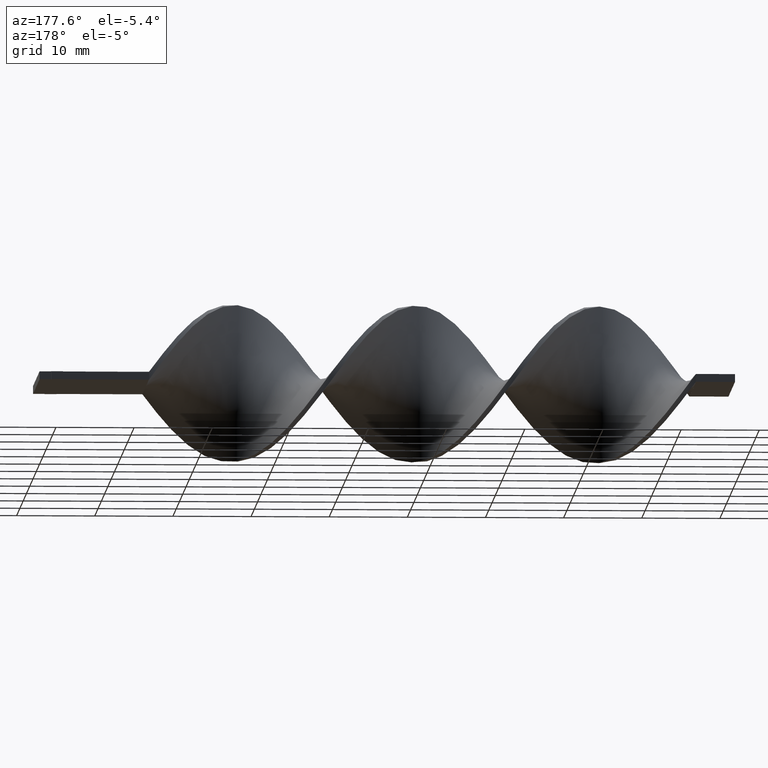
[diagram: clean part render]
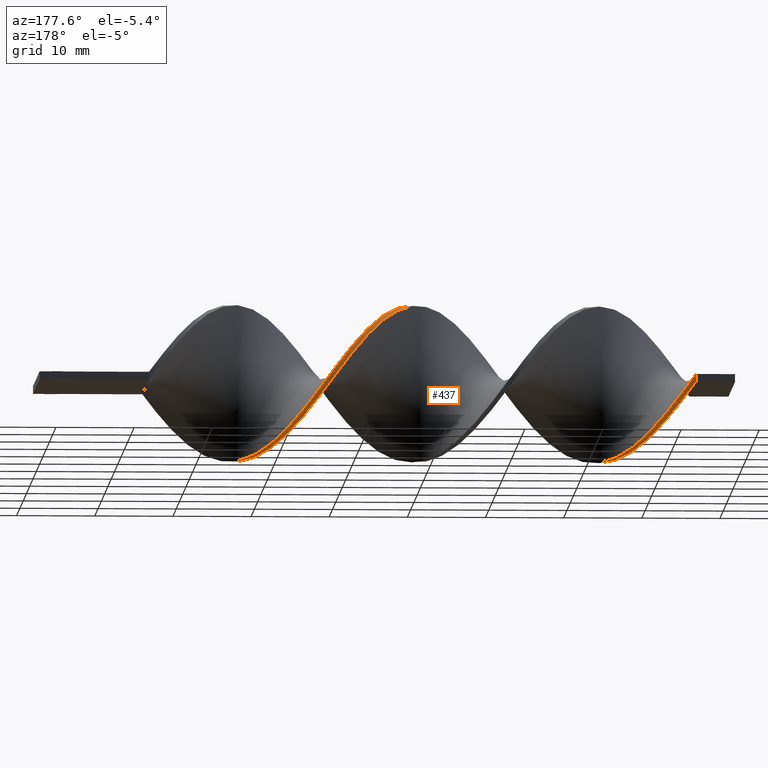
[diagram: same view with one face highlighted and labeled with its STEP entity id]
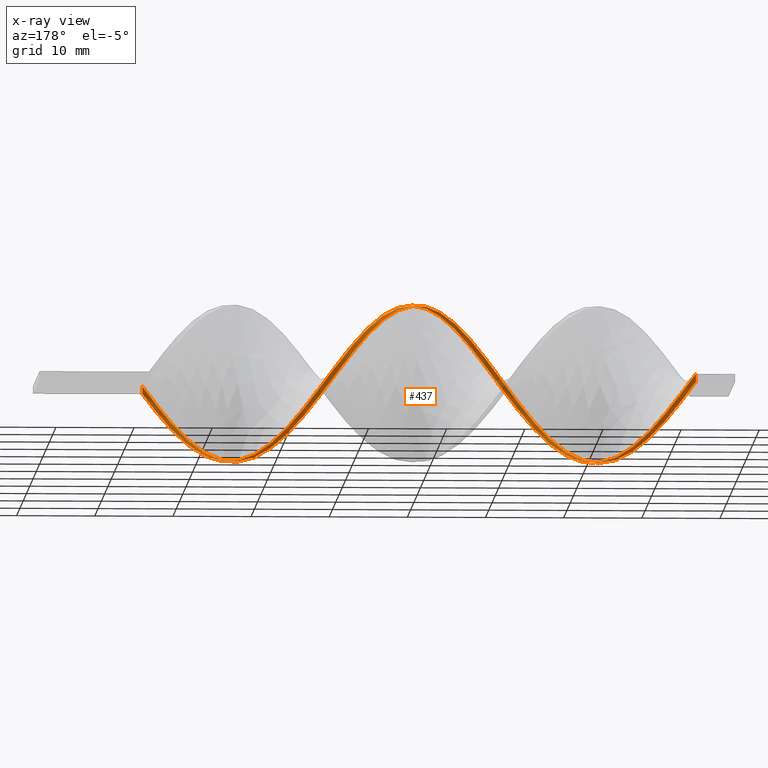
[diagram: x-ray of the same camera — body ghosted, the highlighted face saturated]
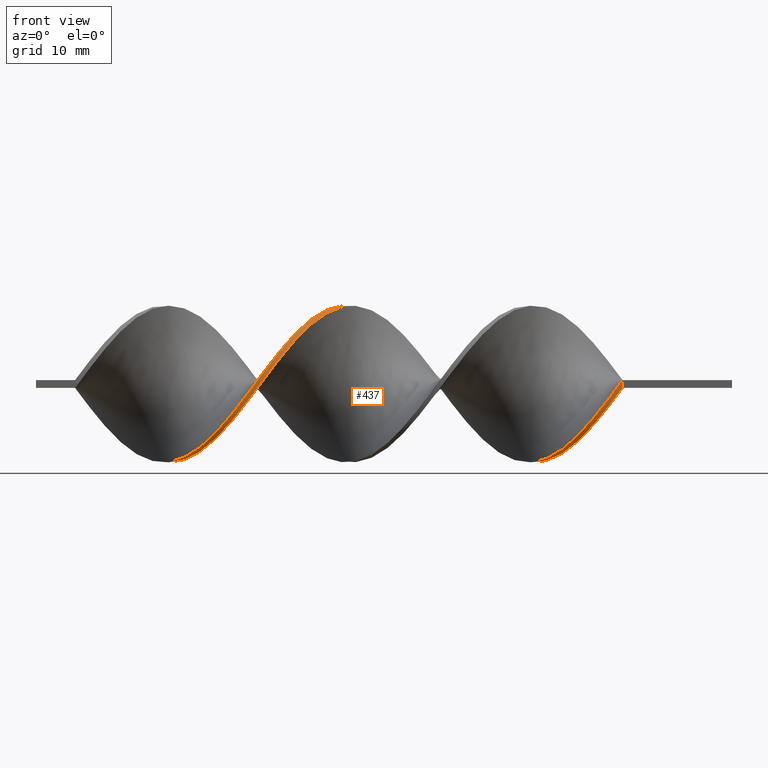
[diagram: same view with one face highlighted and labeled with its STEP entity id]
A machine part, auxiliary view. The second image highlights one B-rep face of the part: STEP entity #437.
The next image is the same camera in x-ray: the body ghosted, the highlighted face saturated — about 2% of this face is hidden behind the body in this view.
A second angle (front view) of the same face is appended — the face is thin or edge-on in the first view.
In plain terms, the highlighted face is a freeform B-spline surface patch.
Its self-contained STEP definition (entity closure, byte-faithful):
#1 = CARTESIAN_POINT ( 'NONE',  ( -49.89743589743589069, -1.701721239602251634, 9.866820400852880368 ) ) ;
#23 = CARTESIAN_POINT ( 'NONE',  ( -59.76923076923076650, -10.06071099161113480, 0.7142198322226109841 ) ) ;
#27 = CARTESIAN_POINT ( 'NONE',  ( -39.12820512820512420, 9.589760342116742109, 2.878627551588600397 ) ) ;
#33 = CARTESIAN_POINT ( 'NONE',  ( -62.46153846153845990, -9.589760342116742109, -2.878627551588603062 ) ) ;
#43 = CARTESIAN_POINT ( 'NONE',  ( -19.38461538461538325, -7.153546152590615215, -7.005481956493501805 ) ) ;
#50 = ORIENTED_EDGE ( 'NONE', *, *, #1482, .F. ) ;
#52 = CARTESIAN_POINT ( 'NONE',  ( -69.64102564102564941, -4.013556991768067128, -9.172859983332880773 ) ) ;
#53 = CARTESIAN_POINT ( 'NONE',  ( -16.69230769230769695, -9.240231675844619019, -4.043035270954601579 ) ) ;
#58 = EDGE_LOOP ( 'NONE', ( #617, #738, #50, #1015 ) ) ;
#60 = CARTESIAN_POINT ( 'NONE',  ( -74.12820512820510999, 1.921697069441246519, -9.901267393559574970 ) ) ;
#61 = CARTESIAN_POINT ( 'NONE',  ( -24.76923076923076650, -1.701721239602260516, -9.866820400852878592 ) ) ;
#68 = CARTESIAN_POINT ( 'NONE',  ( -45.41025641025640880, 5.127343842764457982, 8.685525933616828453 ) ) ;
#69 = CARTESIAN_POINT ( 'NONE',  ( -78.61538461538461320, 7.816668810831406411, -6.256971208322403832 ) ) ;
#77 = CARTESIAN_POINT ( 'NONE',  ( -26.56410256410256210, 0.7090123655042004369, -9.987357081108200418 ) ) ;
#78 = CARTESIAN_POINT ( 'NONE',  ( -19.38461538461538325, -7.816668810831409964, -6.256971208322401168 ) ) ;
#87 = CARTESIAN_POINT ( 'NONE',  ( -20.28205128205128460, -7.056934957752321935, -7.206086637525141114 ) ) ;
#95 = CARTESIAN_POINT ( 'NONE',  ( -27.46153846153846345, 2.899770140771671834, -9.660194033048927764 ) ) ;
#96 = CARTESIAN_POINT ( 'NONE',  ( -39.12820512820512420, 9.829076006404298127, 1.907685734162548385 ) ) ;
#97 = CARTESIAN_POINT ( 'NONE',  ( -16.69230769230769340, -9.597441021197470334, -3.101151636102497555 ) ) ;
#98 = CARTESIAN_POINT ( 'NONE',  ( -73.23076923076924061, 1.701721239602254521, -9.866820400852878592 ) ) ;
#105 = CARTESIAN_POINT ( 'NONE',  ( -44.51282051282051100, 5.269155534364730720, 8.513871032302141373 ) ) ;
#106 = CARTESIAN_POINT ( 'NONE',  ( -69.64102564102564941, -4.013556991768067128, -9.172859983332880773 ) ) ;
#113 = CARTESIAN_POINT ( 'NONE',  ( -76.82051282051281760, 5.269155534364728055, -8.513871032302143149 ) ) ;
#115 = CARTESIAN_POINT ( 'NONE',  ( -84.00000000000000000, 9.999999999999998224, 0.4999999999999988343 ) ) ;
#121 = CARTESIAN_POINT ( 'NONE',  ( -42.71794871794872250, 7.153546152590615215, 7.005481956493500029 ) ) ;
#122 = CARTESIAN_POINT ( 'NONE',  ( -59.76923076923077360, -9.939289008388872304, 1.714219832222610984 ) ) ;
#123 = CARTESIAN_POINT ( 'NONE',  ( -35.53846153846153300, 9.829076006404296351, -1.907685734162555047 ) ) ;
#127 = CARTESIAN_POINT ( 'NONE',  ( -82.20512820512820440, 9.589760342116736780, -2.878627551588606615 ) ) ;
#131 = CARTESIAN_POINT ( 'NONE',  ( -84.00000000000000000, 9.999999999999998224, -0.1666666666666678787 ) ) ;
#146 = CARTESIAN_POINT ( 'NONE',  ( -57.97435897435897090, -9.597441021197468558, 3.101151636102501552 ) ) ;
#149 = CARTESIAN_POINT ( 'NONE',  ( -28.35897435897435770, 4.013556991768060911, -9.172859983332880773 ) ) ;
#158 = CARTESIAN_POINT ( 'NONE',  ( -58.87179487179486870, -9.829076006404299903, 1.907685734162560820 ) ) ;
#166 = CARTESIAN_POINT ( 'NONE',  ( -66.05128205128204399, -7.153546152590615215, -7.005481956493501805 ) ) ;
#175 = CARTESIAN_POINT ( 'NONE',  ( -54.38461538461538680, -6.302926640005405368, 7.874079717413033030 ) ) ;
#176 = CARTESIAN_POINT ( 'NONE',  ( -59.76923076923077360, -10.06071099161113480, 0.7142198322226109841 ) ) ;
#186 = CARTESIAN_POINT ( 'NONE',  ( -70.53846153846153300, -2.899770140771675830, -9.660194033048927764 ) ) ;
#187 = CARTESIAN_POINT ( 'NONE',  ( -75.02564102564102200, 4.013556991768060911, -9.172859983332880773 ) ) ;
#193 = CARTESIAN_POINT ( 'NONE',  ( -31.05128205128205465, 6.302926640005407144, -7.874079717413029478 ) ) ;
#194 = CARTESIAN_POINT ( 'NONE',  ( -49.89743589743589069, -0.7090123655041976614, 9.987357081108202195 ) ) ;
#201 = CARTESIAN_POINT ( 'NONE',  ( -36.43589743589743790, 9.939289008388868751, -1.714219832222609874 ) ) ;
#202 = CARTESIAN_POINT ( 'NONE',  ( -42.71794871794872250, 7.816668810831409964, 6.256971208322399391 ) ) ;
#204 = CARTESIAN_POINT ( 'NONE',  ( -84.00000000000000000, 9.999999999999998224, 0.4999999999999988343 ) ) ;
#210 = CARTESIAN_POINT ( 'NONE',  ( -22.97435897435897090, -4.013556991768067128, -9.172859983332880773 ) ) ;
#211 = CARTESIAN_POINT ( 'NONE',  ( -29.25641025641025905, 4.235384428724049855, -9.153662347191257709 ) ) ;
#219 = CARTESIAN_POINT ( 'NONE',  ( -51.69230769230769340, -3.078540749082649963, 9.527464870375414563 ) ) ;
#222 = CARTESIAN_POINT ( 'NONE',  ( -13.99999999999999645, -10.00000000000000178, 0.5000000000000000000 ) ) ;
#228 = CARTESIAN_POINT ( 'NONE',  ( -34.64102564102564230, 9.597441021197465005, -3.101151636102500220 ) ) ;
#229 = CARTESIAN_POINT ( 'NONE',  ( -57.97435897435897090, -9.240231675844617243, 4.043035270954606020 ) ) ;
#233 = VERTEX_POINT ( 'NONE', #264 ) ;
#236 = CARTESIAN_POINT ( 'NONE',  ( -38.23076923076922640, 9.939289008388868751, 1.714219832222602991 ) ) ;
#237 = CARTESIAN_POINT ( 'NONE',  ( -71.43589743589743080, -1.701721239602260516, -9.866820400852878592 ) ) ;
#244 = CARTESIAN_POINT ( 'NONE',  ( -83.10256410256410220, 9.939289008388868751, -1.714219832222609874 ) ) ;
#247 = CARTESIAN_POINT ( 'NONE',  ( -54.38461538461538680, -7.056934957752315718, 7.206086637525145555 ) ) ;
#252 = CARTESIAN_POINT ( 'NONE',  ( -22.97435897435897090, -3.078540749082652184, -9.527464870375414563 ) ) ;
#253 = CARTESIAN_POINT ( 'NONE',  ( -74.12820512820512420, 1.921697069441246519, -9.901267393559574970 ) ) ;
#255 = CARTESIAN_POINT ( 'NONE',  ( -24.76923076923076650, -0.7090123655042065431, -9.987357081108200418 ) ) ;
#260 = CARTESIAN_POINT ( 'NONE',  ( -73.23076923076924061, 0.7090123655042004369, -9.987357081108200418 ) ) ;
#264 = CARTESIAN_POINT ( 'NONE',  ( -13.99999999999999645, -10.00000000000000178, -0.5000000000000000000 ) ) ;
#272 = CARTESIAN_POINT ( 'NONE',  ( -54.38461538461538680, -7.056934957752314830, 7.206086637525145555 ) ) ;
#273 = VERTEX_POINT ( 'NONE', #1265 ) ;
#281 = CARTESIAN_POINT ( 'NONE',  ( -45.41025641025640880, 4.235384428724056072, 9.153662347191254156 ) ) ;
#289 = CARTESIAN_POINT ( 'NONE',  ( -63.35897435897435770, -9.240231675844619019, -4.043035270954601579 ) ) ;
#293 = CARTESIAN_POINT ( 'NONE',  ( -78.61538461538461320, 7.816668810831406411, -6.256971208322403832 ) ) ;
#297 = CARTESIAN_POINT ( 'NONE',  ( -19.38461538461538325, -7.816668810831409964, -6.256971208322401168 ) ) ;
#298 = CARTESIAN_POINT ( 'NONE',  ( -49.00000000000000711, -0.5036723384328407604, 10.07344676865682764 ) ) ;
#304 = CARTESIAN_POINT ( 'NONE',  ( -57.07692307692307310, -8.622198670510213603, 5.089959733264296737 ) ) ;
#305 = CARTESIAN_POINT ( 'NONE',  ( -68.74358974358973740, -4.235384428724052519, -9.153662347191257709 ) ) ;
#313 = CARTESIAN_POINT ( 'NONE',  ( -20.28205128205128460, -7.056934957752321935, -7.206086637525141114 ) ) ;
#314 = CARTESIAN_POINT ( 'NONE',  ( -41.82051282051281760, 8.576402663910497992, 5.307855779119661221 ) ) ;
#319 = VERTEX_POINT ( 'NONE', #694 ) ;
#322 = CARTESIAN_POINT ( 'NONE',  ( -27.46153846153846345, 1.921697069441246519, -9.901267393559574970 ) ) ;
#323 = CARTESIAN_POINT ( 'NONE',  ( -71.43589743589743080, -0.7090123655042065431, -9.987357081108200418 ) ) ;
#326 = CARTESIAN_POINT ( 'NONE',  ( -75.92307692307691980, 5.127343842764453541, -8.685525933616832006 ) ) ;
#333 = CARTESIAN_POINT ( 'NONE',  ( -51.69230769230769340, -3.078540749082649963, 9.527464870375414563 ) ) ;
#334 = CARTESIAN_POINT ( 'NONE',  ( -17.58974358974358765, -9.086921842553984163, -4.204503707611079832 ) ) ;
#342 = CARTESIAN_POINT ( 'NONE',  ( -21.17948717948717885, -5.269155534364732496, -8.513871032302141373 ) ) ;
#343 = CARTESIAN_POINT ( 'NONE',  ( -38.23076923076922640, 10.06071099161113125, 0.7142198322226029905 ) ) ;
#350 = CARTESIAN_POINT ( 'NONE',  ( -39.12820512820512420, 9.589760342116742109, 2.878627551588600397 ) ) ;
#351 = CARTESIAN_POINT ( 'NONE',  ( -76.82051282051281760, 5.269155534364728055, -8.513871032302143149 ) ) ;
#353 = CARTESIAN_POINT ( 'NONE',  ( -18.48717948717948545, -8.576402663910501545, -5.307855779119662110 ) ) ;
#359 = CARTESIAN_POINT ( 'NONE',  ( -24.76923076923076650, -0.7090123655042065431, -9.987357081108200418 ) ) ;
#367 = CARTESIAN_POINT ( 'NONE',  ( -40.92307692307691980, 8.622198670510211826, 5.089959733264289632 ) ) ;
#368 = CARTESIAN_POINT ( 'NONE',  ( -65.15384615384614619, -8.576402663910501545, -5.307855779119662110 ) ) ;
#374 = CARTESIAN_POINT ( 'NONE',  ( -77.71794871794874382, 6.302926640005407144, -7.874079717413029478 ) ) ;
#375 = CARTESIAN_POINT ( 'NONE',  ( -56.17948717948717530, -8.004165665175817068, 6.136884195573982126 ) ) ;
#376 = CARTESIAN_POINT ( 'NONE',  ( -33.74358974358974450, 9.086921842553980611, -4.204503707611081609 ) ) ;
#381 = CARTESIAN_POINT ( 'NONE',  ( -53.48717948717948900, -5.269155534364728943, 8.513871032302144926 ) ) ;
#398 = CARTESIAN_POINT ( 'NONE',  ( -65.15384615384614619, -8.004165665175818845, -6.136884195573979461 ) ) ;
#402 = CARTESIAN_POINT ( 'NONE',  ( -20.28205128205128460, -6.302926640005413361, -7.874079717413027701 ) ) ;
#406 = CARTESIAN_POINT ( 'NONE',  ( -66.05128205128204399, -7.153546152590615215, -7.005481956493501805 ) ) ;
#409 = CARTESIAN_POINT ( 'NONE',  ( -51.69230769230769340, -4.013556991768065352, 9.172859983332880773 ) ) ;
#414 = CARTESIAN_POINT ( 'NONE',  ( -70.53846153846153300, -1.921697069441250516, -9.901267393559574970 ) ) ;
#417 = CARTESIAN_POINT ( 'NONE',  ( -41.82051282051281760, 8.576402663910497992, 5.307855779119661221 ) ) ;
#427 = CARTESIAN_POINT ( 'NONE',  ( -52.58974358974359120, -4.235384428724044525, 9.153662347191259485 ) ) ;
#428 = CARTESIAN_POINT ( 'NONE',  ( -69.64102564102564941, -3.078540749082652184, -9.527464870375414563 ) ) ;
#435 = CARTESIAN_POINT ( 'NONE',  ( -63.35897435897436480, -9.597441021197470334, -3.101151636102497555 ) ) ;
#436 = CARTESIAN_POINT ( 'NONE',  ( -75.92307692307693401, 5.127343842764453541, -8.685525933616832006 ) ) ;
#437 = ADVANCED_FACE ( 'NONE', ( #1042 ), #1329, .T. ) ;
#444 = CARTESIAN_POINT ( 'NONE',  ( -56.17948717948717530, -8.004165665175817068, 6.136884195573983014 ) ) ;
#445 = CARTESIAN_POINT ( 'NONE',  ( -74.12820512820512420, 2.899770140771672278, -9.660194033048927764 ) ) ;
#446 =( BOUNDED_CURVE ( )  B_SPLINE_CURVE ( 2, ( #222, #1218, #1474, #97, #1594, #353, #297, #313, #453, #565, #210, #1041, #1075, #938, #77, #322, #1323, #1559, #956, #193, #583, #820, #574, #698, #1549, #201, #705, #681, #1428, #1574, #714, #417, #557, #1189, #1172, #68, #922, #1539, #1060, #1198, #803, #1453, #333, #427, #947, #175, #831, #444, #304, #931, #813, #1420, #1305, #1334, #1067, #435, #1207, #548, #794, #1296, #1313, #1437, #52, #186, #691, #1051, #1181, #60, #1567, #1445, #113, #374, #493, #1243, #867, #592, #754, #244, #723 ),
 .UNSPECIFIED., .F., .T. ) 
 B_SPLINE_CURVE_WITH_KNOTS ( ( 3, 2, 2, 2, 2, 2, 2, 2, 2, 2, 2, 2, 2, 2, 2, 2, 2, 2, 2, 2, 2, 2, 2, 2, 2, 2, 2, 2, 2, 2, 2, 2, 2, 2, 2, 2, 2, 2, 2, 3 ),
 ( 0.000000000000000000, 0.01923076923076923184, 0.03846153846153846367, 0.05769230769230768857, 0.07692307692307692735, 0.09615384615384615918, 0.1153846153846153771, 0.1346153846153846090, 0.1538461538461538547, 0.1730769230769230449, 0.1923076923076923184, 0.2115384615384615363, 0.2307692307692307543, 0.2500000000000000000, 0.2692307692307692180, 0.2884615384615384359, 0.3076923076923077094, 0.3269230769230769273, 0.3461538461538460898, 0.3653846153846153633, 0.3846153846153846367, 0.4038461538461539102, 0.4230769230769230727, 0.4423076923076922906, 0.4615384615384615086, 0.4807692307692307820, 0.5000000000000000000, 0.5192307692307692735, 0.5384615384615384359, 0.5576923076923077094, 0.5769230769230768718, 0.5961538461538461453, 0.6153846153846154188, 0.6346153846153845812, 0.6538461538461538547, 0.6730769230769230171, 0.6923076923076921796, 0.7115384615384615641, 0.7307692307692307265, 0.7500000000000000000 ),
 .UNSPECIFIED. ) 
 CURVE ( )  GEOMETRIC_REPRESENTATION_ITEM ( )  RATIONAL_B_SPLINE_CURVE ( ( 1.000000000000000000, 0.9927088740980539727, 1.000000000000000000, 0.9927088740980539727, 1.000000000000000000, 0.9927088740980539727, 1.000000000000000000, 0.9927088740980539727, 1.000000000000000000, 0.9927088740980539727, 1.000000000000000000, 0.9927088740980539727, 1.000000000000000000, 0.9927088740980539727, 1.000000000000000000, 0.9927088740980539727, 1.000000000000000000, 0.9927088740980539727, 1.000000000000000000, 0.9927088740980539727, 1.000000000000000000, 0.9927088740980539727, 1.000000000000000000, 0.9927088740980539727, 1.000000000000000000, 0.9927088740980539727, 1.000000000000000000, 0.9927088740980539727, 1.000000000000000000, 0.9927088740980539727, 1.000000000000000000, 0.9927088740980539727, 1.000000000000000000, 0.9927088740980539727, 1.000000000000000000, 0.9927088740980539727, 1.000000000000000000, 0.9927088740980539727, 1.000000000000000000, 0.9927088740980539727, 1.000000000000000000, 0.9927088740980539727, 1.000000000000000000, 0.9927088740980539727, 1.000000000000000000, 0.9927088740980539727, 1.000000000000000000, 0.9927088740980539727, 1.000000000000000000, 0.9927088740980539727, 1.000000000000000000, 0.9927088740980539727, 1.000000000000000000, 0.9927088740980539727, 1.000000000000000000, 0.9927088740980539727, 1.000000000000000000, 0.9927088740980539727, 1.000000000000000000, 0.9927088740980539727, 1.000000000000000000, 0.9927088740980539727, 1.000000000000000000, 0.9927088740980539727, 1.000000000000000000, 0.9927088740980539727, 1.000000000000000000, 0.9927088740980539727, 1.000000000000000000, 0.9927088740980539727, 1.000000000000000000, 0.9927088740980539727, 1.000000000000000000, 0.9927088740980539727, 1.000000000000000000, 0.9927088740980539727, 1.000000000000000000, 0.9927088740980539727, 1.000000000000000000 ) ) 
 REPRESENTATION_ITEM ( '' )  );
#453 = CARTESIAN_POINT ( 'NONE',  ( -21.17948717948717885, -6.092139400258388626, -7.945806285570984784 ) ) ;
#454 = CARTESIAN_POINT ( 'NONE',  ( -66.94871794871794179, -6.302926640005413361, -7.874079717413027701 ) ) ;
#465 = CARTESIAN_POINT ( 'NONE',  ( -14.89743589743589602, -9.939289008388872304, -1.714219832222605433 ) ) ;
#466 = CARTESIAN_POINT ( 'NONE',  ( -36.43589743589743790, 9.939289008388868751, -1.714219832222609874 ) ) ;
#467 = DIRECTION ( 'NONE',  ( -0.000000000000000000, -0.000000000000000000, -1.000000000000000000 ) ) ;
#468 = CARTESIAN_POINT ( 'NONE',  ( -77.71794871794874382, 7.056934957752318383, -7.206086637525142891 ) ) ;
#476 = CARTESIAN_POINT ( 'NONE',  ( -32.84615384615384670, 8.576402663910496216, -5.307855779119662998 ) ) ;
#480 = CARTESIAN_POINT ( 'NONE',  ( -74.12820512820510999, 2.899770140771671834, -9.660194033048927764 ) ) ;
#487 = LINE ( 'NONE', #1086, #1510 ) ;
#493 = CARTESIAN_POINT ( 'NONE',  ( -78.61538461538461320, 7.153546152590610774, -7.005481956493504470 ) ) ;
#502 = CARTESIAN_POINT ( 'NONE',  ( -48.10256410256410220, 0.7090123655042074313, 9.987357081108202195 ) ) ;
#506 = CARTESIAN_POINT ( 'NONE',  ( -55.28205128205128460, -7.816668810831406411, 6.256971208322405609 ) ) ;
#510 = CARTESIAN_POINT ( 'NONE',  ( -57.07692307692307310, -9.086921842553982387, 4.204503707611086938 ) ) ;
#511 = CARTESIAN_POINT ( 'NONE',  ( -54.38461538461538680, -6.302926640005404479, 7.874079717413032142 ) ) ;
#516 = CARTESIAN_POINT ( 'NONE',  ( -52.58974358974359120, -5.127343842764450876, 8.685525933616833782 ) ) ;
#517 = VERTEX_POINT ( 'NONE', #884 ) ;
#519 = CARTESIAN_POINT ( 'NONE',  ( -84.00000000000000000, 9.999999999999998224, 0.1666666666666654917 ) ) ;
#529 = CARTESIAN_POINT ( 'NONE',  ( -61.56410256410256920, -9.939289008388872304, -1.714219832222605433 ) ) ;
#532 = CARTESIAN_POINT ( 'NONE',  ( -40.02564102564102200, 9.240231675844617243, 4.043035270954598914 ) ) ;
#539 = CARTESIAN_POINT ( 'NONE',  ( -23.87179487179487580, -1.921697069441250294, -9.901267393559574970 ) ) ;
#548 = CARTESIAN_POINT ( 'NONE',  ( -65.15384615384614619, -8.576402663910501545, -5.307855779119662110 ) ) ;
#550 = CARTESIAN_POINT ( 'NONE',  ( -25.66666666666666785, 0.5036723384328397612, -10.07344676865682764 ) ) ;
#557 = CARTESIAN_POINT ( 'NONE',  ( -42.71794871794872250, 7.816668810831409964, 6.256971208322399391 ) ) ;
#565 = CARTESIAN_POINT ( 'NONE',  ( -22.07692307692308020, -5.127343842764455317, -8.685525933616832006 ) ) ;
#566 = CARTESIAN_POINT ( 'NONE',  ( -84.00000000000000000, 9.999999999999998224, 0.4999999999999988343 ) ) ;
#574 = CARTESIAN_POINT ( 'NONE',  ( -33.74358974358974450, 8.622198670510211826, -5.089959733264292296 ) ) ;
#575 = CARTESIAN_POINT ( 'NONE',  ( -45.41025641025640880, 5.127343842764457982, 8.685525933616828453 ) ) ;
#583 = CARTESIAN_POINT ( 'NONE',  ( -31.94871794871794535, 7.153546152590610774, -7.005481956493504470 ) ) ;
#584 = CARTESIAN_POINT ( 'NONE',  ( -49.00000000000000711, 0.5036723384328420927, 10.07344676865682764 ) ) ;
#592 = CARTESIAN_POINT ( 'NONE',  ( -81.30769230769232081, 9.240231675844611914, -4.043035270954604243 ) ) ;
#593 = CARTESIAN_POINT ( 'NONE',  ( -30.15384615384615330, 5.269155534364728055, -8.513871032302143149 ) ) ;
#602 = CARTESIAN_POINT ( 'NONE',  ( -28.35897435897435770, 4.013556991768060911, -9.172859983332880773 ) ) ;
#603 = CARTESIAN_POINT ( 'NONE',  ( -52.58974358974358410, -4.235384428724044525, 9.153662347191259485 ) ) ;
#605 = CARTESIAN_POINT ( 'NONE',  ( -75.02564102564102200, 4.013556991768060911, -9.172859983332880773 ) ) ;
#613 = CARTESIAN_POINT ( 'NONE',  ( -64.25641025641024839, -9.086921842553984163, -4.204503707611079832 ) ) ;
#617 = ORIENTED_EDGE ( 'NONE', *, *, #1017, .F. ) ;
#624 =( BOUNDED_CURVE ( )  B_SPLINE_CURVE ( 2, ( #1084, #465, #966, #1368, #1480, #747, #1472, #848, #342, #731, #252, #1463, #359, #1110, #1216, #95, #602, #1094, #859, #1357, #1591, #476, #1609, #228, #1233, #1116, #976, #236, #350, #1348, #367, #740, #121, #1224, #105, #992, #628, #1615, #502, #999, #1496, #895, #1394, #516, #1507, #272, #1029, #769, #510, #146, #1144, #23, #660, #529, #1022, #1519, #1410, #398, #406, #911, #1211, #919, #1078, #414, #1098, #791, #98, #480, #605, #326, #1456, #468, #293, #979, #1475, #1578, #1535, #1160, #204 ),
 .UNSPECIFIED., .F., .T. ) 
 B_SPLINE_CURVE_WITH_KNOTS ( ( 3, 2, 2, 2, 2, 2, 2, 2, 2, 2, 2, 2, 2, 2, 2, 2, 2, 2, 2, 2, 2, 2, 2, 2, 2, 2, 2, 2, 2, 2, 2, 2, 2, 2, 2, 2, 2, 2, 2, 3 ),
 ( 0.000000000000000000, 0.01923076923076923184, 0.03846153846153846367, 0.05769230769230768857, 0.07692307692307692735, 0.09615384615384615918, 0.1153846153846153771, 0.1346153846153846090, 0.1538461538461538547, 0.1730769230769230449, 0.1923076923076923184, 0.2115384615384615363, 0.2307692307692307543, 0.2500000000000000000, 0.2692307692307692180, 0.2884615384615384359, 0.3076923076923077094, 0.3269230769230769273, 0.3461538461538460898, 0.3653846153846153633, 0.3846153846153846367, 0.4038461538461539102, 0.4230769230769230727, 0.4423076923076922906, 0.4615384615384615086, 0.4807692307692307820, 0.5000000000000000000, 0.5192307692307692735, 0.5384615384615384359, 0.5576923076923077094, 0.5769230769230768718, 0.5961538461538461453, 0.6153846153846154188, 0.6346153846153845812, 0.6538461538461538547, 0.6730769230769230171, 0.6923076923076921796, 0.7115384615384615641, 0.7307692307692307265, 0.7500000000000000000 ),
 .UNSPECIFIED. ) 
 CURVE ( )  GEOMETRIC_REPRESENTATION_ITEM ( )  RATIONAL_B_SPLINE_CURVE ( ( 1.000000000000000000, 0.9927088740980539727, 1.000000000000000000, 0.9927088740980539727, 1.000000000000000000, 0.9927088740980539727, 1.000000000000000000, 0.9927088740980539727, 1.000000000000000000, 0.9927088740980539727, 1.000000000000000000, 0.9927088740980539727, 1.000000000000000000, 0.9927088740980539727, 1.000000000000000000, 0.9927088740980539727, 1.000000000000000000, 0.9927088740980539727, 1.000000000000000000, 0.9927088740980539727, 1.000000000000000000, 0.9927088740980539727, 1.000000000000000000, 0.9927088740980539727, 1.000000000000000000, 0.9927088740980539727, 1.000000000000000000, 0.9927088740980539727, 1.000000000000000000, 0.9927088740980539727, 1.000000000000000000, 0.9927088740980539727, 1.000000000000000000, 0.9927088740980539727, 1.000000000000000000, 0.9927088740980539727, 1.000000000000000000, 0.9927088740980539727, 1.000000000000000000, 0.9927088740980539727, 1.000000000000000000, 0.9927088740980539727, 1.000000000000000000, 0.9927088740980539727, 1.000000000000000000, 0.9927088740980539727, 1.000000000000000000, 0.9927088740980539727, 1.000000000000000000, 0.9927088740980539727, 1.000000000000000000, 0.9927088740980539727, 1.000000000000000000, 0.9927088740980539727, 1.000000000000000000, 0.9927088740980539727, 1.000000000000000000, 0.9927088740980539727, 1.000000000000000000, 0.9927088740980539727, 1.000000000000000000, 0.9927088740980539727, 1.000000000000000000, 0.9927088740980539727, 1.000000000000000000, 0.9927088740980539727, 1.000000000000000000, 0.9927088740980539727, 1.000000000000000000, 0.9927088740980539727, 1.000000000000000000, 0.9927088740980539727, 1.000000000000000000, 0.9927088740980539727, 1.000000000000000000, 0.9927088740980539727, 1.000000000000000000, 0.9927088740980539727, 1.000000000000000000 ) ) 
 REPRESENTATION_ITEM ( '' )  );
#628 = CARTESIAN_POINT ( 'NONE',  ( -46.30769230769230660, 3.078540749082650407, 9.527464870375414563 ) ) ;
#629 = CARTESIAN_POINT ( 'NONE',  ( -79.51282051282051100, 8.004165665175813515, -6.136884195573980350 ) ) ;
#631 = CARTESIAN_POINT ( 'NONE',  ( -46.30769230769230660, 3.078540749082650407, 9.527464870375414563 ) ) ;
#660 = CARTESIAN_POINT ( 'NONE',  ( -60.66666666666666430, -10.00000000000000178, -0.5000000000000000000 ) ) ;
#672 = CARTESIAN_POINT ( 'NONE',  ( -22.07692307692308376, -4.235384428724052519, -9.153662347191257709 ) ) ;
#681 = CARTESIAN_POINT ( 'NONE',  ( -38.23076923076922640, 10.06071099161113125, 0.7142198322226029905 ) ) ;
#682 = CARTESIAN_POINT ( 'NONE',  ( -43.61538461538461320, 6.302926640005414249, 7.874079717413025925 ) ) ;
#691 = CARTESIAN_POINT ( 'NONE',  ( -71.43589743589743080, -1.701721239602260516, -9.866820400852878592 ) ) ;
#692 = CARTESIAN_POINT ( 'NONE',  ( -73.23076923076924061, 1.701721239602254521, -9.866820400852878592 ) ) ;
#694 = CARTESIAN_POINT ( 'NONE',  ( -84.00000000000000000, 9.999999999999998224, -0.5000000000000012212 ) ) ;
#698 = CARTESIAN_POINT ( 'NONE',  ( -34.64102564102564230, 9.240231675844611914, -4.043035270954604243 ) ) ;
#699 = CARTESIAN_POINT ( 'NONE',  ( -13.99999999999999822, -10.00000000000000178, 0.5000000000000000000 ) ) ;
#705 = CARTESIAN_POINT ( 'NONE',  ( -37.33333333333332860, 9.999999999999998224, -0.5000000000000012212 ) ) ;
#706 = CARTESIAN_POINT ( 'NONE',  ( -40.02564102564102200, 9.597441021197468558, 3.101151636102494003 ) ) ;
#714 = CARTESIAN_POINT ( 'NONE',  ( -40.92307692307691980, 9.086921842553980611, 4.204503707611078944 ) ) ;
#715 = CARTESIAN_POINT ( 'NONE',  ( -31.05128205128205821, 6.302926640005407144, -7.874079717413028590 ) ) ;
#723 = CARTESIAN_POINT ( 'NONE',  ( -84.00000000000000000, 9.999999999999998224, -0.5000000000000012212 ) ) ;
#724 = CARTESIAN_POINT ( 'NONE',  ( -67.84615384615385381, -5.269155534364732496, -8.513871032302141373 ) ) ;
#731 = CARTESIAN_POINT ( 'NONE',  ( -22.07692307692308020, -4.235384428724051631, -9.153662347191257709 ) ) ;
#738 = ORIENTED_EDGE ( 'NONE', *, *, #1118, .T. ) ;
#740 = CARTESIAN_POINT ( 'NONE',  ( -41.82051282051281760, 8.004165665175815292, 6.136884195573978573 ) ) ;
#741 = CARTESIAN_POINT ( 'NONE',  ( -57.07692307692307310, -8.622198670510213603, 5.089959733264296737 ) ) ;
#747 = CARTESIAN_POINT ( 'NONE',  ( -18.48717948717948545, -8.004165665175818845, -6.136884195573979461 ) ) ;
#748 = CARTESIAN_POINT ( 'NONE',  ( -63.35897435897435770, -9.597441021197470334, -3.101151636102497555 ) ) ;
#750 = CARTESIAN_POINT ( 'NONE',  ( -31.05128205128205821, 7.056934957752318383, -7.206086637525142891 ) ) ;
#754 = CARTESIAN_POINT ( 'NONE',  ( -82.20512820512820440, 9.589760342116736780, -2.878627551588606615 ) ) ;
#755 = CARTESIAN_POINT ( 'NONE',  ( -75.02564102564102200, 3.078540749082645966, -9.527464870375414563 ) ) ;
#761 = CARTESIAN_POINT ( 'NONE',  ( -72.33333333333332860, -0.5036723384328433140, -10.07344676865682764 ) ) ;
#769 = CARTESIAN_POINT ( 'NONE',  ( -56.17948717948717530, -8.576402663910499768, 5.307855779119664774 ) ) ;
#772 = CARTESIAN_POINT ( 'NONE',  ( -56.17948717948717530, -8.576402663910499768, 5.307855779119664774 ) ) ;
#780 = CARTESIAN_POINT ( 'NONE',  ( -14.89743589743589602, -9.939289008388872304, -1.714219832222605433 ) ) ;
#787 = CARTESIAN_POINT ( 'NONE',  ( -64.25641025641024839, -8.622198670510215379, -5.089959733264290520 ) ) ;
#791 = CARTESIAN_POINT ( 'NONE',  ( -72.33333333333332860, 0.5036723384328397612, -10.07344676865682942 ) ) ;
#794 = CARTESIAN_POINT ( 'NONE',  ( -66.05128205128204399, -7.816668810831409964, -6.256971208322401168 ) ) ;
#796 = CARTESIAN_POINT ( 'NONE',  ( -50.79487179487178850, -2.899770140771671390, 9.660194033048929541 ) ) ;
#803 = CARTESIAN_POINT ( 'NONE',  ( -49.89743589743589069, -0.7090123655041976614, 9.987357081108202195 ) ) ;
#805 = CARTESIAN_POINT ( 'NONE',  ( -79.51282051282051100, 8.576402663910496216, -5.307855779119662998 ) ) ;
#813 = CARTESIAN_POINT ( 'NONE',  ( -58.87179487179486870, -9.589760342116740333, 2.878627551588612388 ) ) ;
#814 = CARTESIAN_POINT ( 'NONE',  ( -44.51282051282051100, 6.092139400258386850, 7.945806285570984784 ) ) ;
#820 = CARTESIAN_POINT ( 'NONE',  ( -32.84615384615384670, 8.004165665175813515, -6.136884195573980350 ) ) ;
#821 = CARTESIAN_POINT ( 'NONE',  ( -72.33333333333332860, 0.5036723384328397612, -10.07344676865682764 ) ) ;
#831 = CARTESIAN_POINT ( 'NONE',  ( -55.28205128205128460, -7.153546152590610774, 7.005481956493506246 ) ) ;
#832 = CARTESIAN_POINT ( 'NONE',  ( -22.07692307692308376, -5.127343842764454429, -8.685525933616832006 ) ) ;
#840 = CARTESIAN_POINT ( 'NONE',  ( -50.79487179487178850, -1.921697069441245631, 9.901267393559576746 ) ) ;
#848 = CARTESIAN_POINT ( 'NONE',  ( -20.28205128205128460, -6.302926640005412473, -7.874079717413027701 ) ) ;
#859 = CARTESIAN_POINT ( 'NONE',  ( -30.15384615384615330, 6.092139400258384185, -7.945806285570986560 ) ) ;
#860 = CARTESIAN_POINT ( 'NONE',  ( -84.00000000000000000, 9.999999999999998224, -0.5000000000000012212 ) ) ;
#867 = CARTESIAN_POINT ( 'NONE',  ( -80.41025641025640880, 8.622198670510211826, -5.089959733264292296 ) ) ;
#868 = CARTESIAN_POINT ( 'NONE',  ( -62.46153846153845990, -9.829076006404301680, -1.907685734162551494 ) ) ;
#869 = CARTESIAN_POINT ( 'NONE',  ( -44.51282051282051100, 5.269155534364730720, 8.513871032302141373 ) ) ;
#878 = CARTESIAN_POINT ( 'NONE',  ( -31.94871794871794535, 7.816668810831406411, -6.256971208322403832 ) ) ;
#884 = CARTESIAN_POINT ( 'NONE',  ( -84.00000000000000000, 9.999999999999998224, 0.4999999999999988343 ) ) ;
#895 = CARTESIAN_POINT ( 'NONE',  ( -50.79487179487178850, -2.899770140771670945, 9.660194033048929541 ) ) ;
#905 = CARTESIAN_POINT ( 'NONE',  ( -60.66666666666666430, -10.00000000000000178, -0.5000000000000000000 ) ) ;
#911 = CARTESIAN_POINT ( 'NONE',  ( -66.94871794871795601, -6.302926640005412473, -7.874079717413027701 ) ) ;
#914 = CARTESIAN_POINT ( 'NONE',  ( -22.97435897435897090, -3.078540749082652184, -9.527464870375414563 ) ) ;
#919 = CARTESIAN_POINT ( 'NONE',  ( -68.74358974358973740, -4.235384428724051631, -9.153662347191257709 ) ) ;
#922 = CARTESIAN_POINT ( 'NONE',  ( -46.30769230769230660, 4.013556991768065352, 9.172859983332880773 ) ) ;
#923 = CARTESIAN_POINT ( 'NONE',  ( -29.25641025641025905, 5.127343842764453541, -8.685525933616832006 ) ) ;
#931 = CARTESIAN_POINT ( 'NONE',  ( -57.97435897435897090, -9.240231675844615467, 4.043035270954605132 ) ) ;
#932 = CARTESIAN_POINT ( 'NONE',  ( -21.17948717948717885, -6.092139400258388626, -7.945806285570984784 ) ) ;
#938 = CARTESIAN_POINT ( 'NONE',  ( -25.66666666666666785, -0.5036723384328433140, -10.07344676865682942 ) ) ;
#940 = CARTESIAN_POINT ( 'NONE',  ( -37.33333333333332860, 9.999999999999998224, -0.5000000000000012212 ) ) ;
#947 = CARTESIAN_POINT ( 'NONE',  ( -53.48717948717948900, -5.269155534364728943, 8.513871032302144926 ) ) ;
#948 = CARTESIAN_POINT ( 'NONE',  ( -25.66666666666666785, -0.5036723384328433140, -10.07344676865682764 ) ) ;
#956 = CARTESIAN_POINT ( 'NONE',  ( -30.15384615384615330, 5.269155534364728055, -8.513871032302143149 ) ) ;
#957 = CARTESIAN_POINT ( 'NONE',  ( -77.71794871794872961, 7.056934957752318383, -7.206086637525142891 ) ) ;
#966 = CARTESIAN_POINT ( 'NONE',  ( -15.79487179487179205, -9.589760342116742109, -2.878627551588603062 ) ) ;
#967 = CARTESIAN_POINT ( 'NONE',  ( -80.41025641025640880, 9.086921842553980611, -4.204503707611081609 ) ) ;
#976 = CARTESIAN_POINT ( 'NONE',  ( -37.33333333333332860, 9.999999999999998224, 0.4999999999999988343 ) ) ;
#977 = CARTESIAN_POINT ( 'NONE',  ( -66.94871794871794179, -7.056934957752321935, -7.206086637525141114 ) ) ;
#979 = CARTESIAN_POINT ( 'NONE',  ( -79.51282051282051100, 8.576402663910496216, -5.307855779119662998 ) ) ;
#984 = CARTESIAN_POINT ( 'NONE',  ( -80.41025641025640880, 8.622198670510211826, -5.089959733264292296 ) ) ;
#991 = B_SPLINE_CURVE_WITH_KNOTS ( 'NONE', 3,
 ( #115, #519, #131, #1228 ),
 .UNSPECIFIED., .F., .F.,
 ( 4, 4 ),
 ( 0.000000000000000000, 1.000000000000000000 ),
 .UNSPECIFIED. ) ;
#992 = CARTESIAN_POINT ( 'NONE',  ( -45.41025641025640880, 4.235384428724055184, 9.153662347191254156 ) ) ;
#999 = CARTESIAN_POINT ( 'NONE',  ( -49.00000000000000000, -0.5036723384328408715, 10.07344676865682942 ) ) ;
#1001 = CARTESIAN_POINT ( 'NONE',  ( -13.99999999999999822, -10.00000000000000178, -0.5000000000000000000 ) ) ;
#1015 = ORIENTED_EDGE ( 'NONE', *, *, #1209, .F. ) ;
#1017 = EDGE_CURVE ( 'NONE', #273, #233, #487, .T. ) ;
#1022 = CARTESIAN_POINT ( 'NONE',  ( -62.46153846153845990, -9.589760342116742109, -2.878627551588603062 ) ) ;
#1025 = CARTESIAN_POINT ( 'NONE',  ( -41.82051282051281760, 8.004165665175815292, 6.136884195573978573 ) ) ;
#1029 = CARTESIAN_POINT ( 'NONE',  ( -55.28205128205128460, -7.816668810831406411, 6.256971208322405609 ) ) ;
#1032 = CARTESIAN_POINT ( 'NONE',  ( -34.64102564102564230, 9.597441021197465005, -3.101151636102500664 ) ) ;
#1041 = CARTESIAN_POINT ( 'NONE',  ( -23.87179487179487580, -2.899770140771675830, -9.660194033048927764 ) ) ;
#1042 = FACE_OUTER_BOUND ( 'NONE', #58, .T. ) ;
#1051 = CARTESIAN_POINT ( 'NONE',  ( -72.33333333333332860, -0.5036723384328433140, -10.07344676865682942 ) ) ;
#1052 = CARTESIAN_POINT ( 'NONE',  ( -30.15384615384615330, 6.092139400258384185, -7.945806285570986560 ) ) ;
#1060 = CARTESIAN_POINT ( 'NONE',  ( -48.10256410256410220, 1.701721239602261404, 9.866820400852876816 ) ) ;
#1061 = CARTESIAN_POINT ( 'NONE',  ( -32.84615384615384670, 8.004165665175813515, -6.136884195573980350 ) ) ;
#1067 = CARTESIAN_POINT ( 'NONE',  ( -62.46153846153845990, -9.829076006404301680, -1.907685734162551494 ) ) ;
#1068 = CARTESIAN_POINT ( 'NONE',  ( -46.30769230769230660, 4.013556991768065352, 9.172859983332880773 ) ) ;
#1075 = CARTESIAN_POINT ( 'NONE',  ( -24.76923076923076650, -1.701721239602260516, -9.866820400852878592 ) ) ;
#1076 = CARTESIAN_POINT ( 'NONE',  ( -35.53846153846153300, 9.589760342116736780, -2.878627551588606615 ) ) ;
#1078 = CARTESIAN_POINT ( 'NONE',  ( -69.64102564102564941, -3.078540749082652184, -9.527464870375414563 ) ) ;
#1084 = CARTESIAN_POINT ( 'NONE',  ( -13.99999999999999645, -10.00000000000000178, -0.5000000000000000000 ) ) ;
#1085 = CARTESIAN_POINT ( 'NONE',  ( -31.94871794871794535, 7.153546152590610774, -7.005481956493504470 ) ) ;
#1086 = CARTESIAN_POINT ( 'NONE',  ( -13.99999999999999645, -10.00000000000000178, 0.5000000000000000000 ) ) ;
#1094 = CARTESIAN_POINT ( 'NONE',  ( -29.25641025641025905, 5.127343842764453541, -8.685525933616832006 ) ) ;
#1095 = CARTESIAN_POINT ( 'NONE',  ( -70.53846153846153300, -1.921697069441250294, -9.901267393559574970 ) ) ;
#1098 = CARTESIAN_POINT ( 'NONE',  ( -71.43589743589743080, -0.7090123655042065431, -9.987357081108200418 ) ) ;
#1104 = CARTESIAN_POINT ( 'NONE',  ( -83.10256410256410220, 9.939289008388868751, -1.714219832222609874 ) ) ;
#1110 = CARTESIAN_POINT ( 'NONE',  ( -25.66666666666666785, 0.5036723384328397612, -10.07344676865682942 ) ) ;
#1111 = CARTESIAN_POINT ( 'NONE',  ( -75.92307692307693401, 4.235384428724049855, -9.153662347191257709 ) ) ;
#1116 = CARTESIAN_POINT ( 'NONE',  ( -36.43589743589743790, 10.06071099161113125, -0.7142198322226099849 ) ) ;
#1118 = EDGE_CURVE ( 'NONE', #273, #319, #446, .T. ) ;
#1120 = CARTESIAN_POINT ( 'NONE',  ( -47.20512820512820440, 1.921697069441246963, 9.901267393559574970 ) ) ;
#1124 = CARTESIAN_POINT ( 'NONE',  ( -66.05128205128204399, -7.816668810831409964, -6.256971208322401168 ) ) ;
#1144 = CARTESIAN_POINT ( 'NONE',  ( -58.87179487179486870, -9.829076006404299903, 1.907685734162560820 ) ) ;
#1147 = CARTESIAN_POINT ( 'NONE',  ( -15.79487179487179205, -9.589760342116742109, -2.878627551588603062 ) ) ;
#1154 = CARTESIAN_POINT ( 'NONE',  ( -61.56410256410256920, -9.939289008388872304, -1.714219832222605433 ) ) ;
#1160 = CARTESIAN_POINT ( 'NONE',  ( -83.10256410256410220, 10.06071099161113125, -0.7142198322226099849 ) ) ;
#1163 = CARTESIAN_POINT ( 'NONE',  ( -18.48717948717948545, -8.004165665175818845, -6.136884195573979461 ) ) ;
#1172 = CARTESIAN_POINT ( 'NONE',  ( -44.51282051282051100, 6.092139400258386850, 7.945806285570984784 ) ) ;
#1173 = CARTESIAN_POINT ( 'NONE',  ( -17.58974358974358765, -8.622198670510215379, -5.089959733264290520 ) ) ;
#1181 = CARTESIAN_POINT ( 'NONE',  ( -73.23076923076924061, 0.7090123655042004369, -9.987357081108200418 ) ) ;
#1182 = CARTESIAN_POINT ( 'NONE',  ( -23.87179487179487580, -2.899770140771675830, -9.660194033048927764 ) ) ;
#1189 = CARTESIAN_POINT ( 'NONE',  ( -43.61538461538461320, 7.056934957752321047, 7.206086637525138450 ) ) ;
#1190 = CARTESIAN_POINT ( 'NONE',  ( -16.69230769230769695, -9.597441021197470334, -3.101151636102497555 ) ) ;
#1198 = CARTESIAN_POINT ( 'NONE',  ( -49.00000000000000000, 0.5036723384328420927, 10.07344676865682942 ) ) ;
#1200 = CARTESIAN_POINT ( 'NONE',  ( -48.10256410256410220, 1.701721239602261404, 9.866820400852876816 ) ) ;
#1207 = CARTESIAN_POINT ( 'NONE',  ( -64.25641025641024839, -9.086921842553984163, -4.204503707611079832 ) ) ;
#1208 = CARTESIAN_POINT ( 'NONE',  ( -28.35897435897435770, 3.078540749082645966, -9.527464870375414563 ) ) ;
#1209 = EDGE_CURVE ( 'NONE', #233, #517, #624, .T. ) ;
#1211 = CARTESIAN_POINT ( 'NONE',  ( -67.84615384615385381, -5.269155534364732496, -8.513871032302141373 ) ) ;
#1216 = CARTESIAN_POINT ( 'NONE',  ( -26.56410256410256210, 1.701721239602254521, -9.866820400852878592 ) ) ;
#1217 = CARTESIAN_POINT ( 'NONE',  ( -15.79487179487179205, -9.829076006404301680, -1.907685734162551494 ) ) ;
#1218 = CARTESIAN_POINT ( 'NONE',  ( -14.89743589743589602, -10.06071099161113480, -0.7142198322226054330 ) ) ;
#1224 = CARTESIAN_POINT ( 'NONE',  ( -43.61538461538461320, 6.302926640005413361, 7.874079717413025925 ) ) ;
#1228 = CARTESIAN_POINT ( 'NONE',  ( -84.00000000000000000, 9.999999999999998224, -0.5000000000000012212 ) ) ;
#1233 = CARTESIAN_POINT ( 'NONE',  ( -35.53846153846153300, 9.829076006404296351, -1.907685734162555047 ) ) ;
#1243 = CARTESIAN_POINT ( 'NONE',  ( -79.51282051282051100, 8.004165665175813515, -6.136884195573980350 ) ) ;
#1244 = CARTESIAN_POINT ( 'NONE',  ( -67.84615384615385381, -6.092139400258388626, -7.945806285570984784 ) ) ;
#1246 = CARTESIAN_POINT ( 'NONE',  ( -21.17948717948717885, -5.269155534364732496, -8.513871032302141373 ) ) ;
#1250 = CARTESIAN_POINT ( 'NONE',  ( -81.30769230769233502, 9.240231675844613690, -4.043035270954605132 ) ) ;
#1255 = CARTESIAN_POINT ( 'NONE',  ( -55.28205128205128460, -7.153546152590610774, 7.005481956493506246 ) ) ;
#1265 = CARTESIAN_POINT ( 'NONE',  ( -13.99999999999999645, -10.00000000000000178, 0.5000000000000000000 ) ) ;
#1270 = CARTESIAN_POINT ( 'NONE',  ( -57.07692307692307310, -9.086921842553982387, 4.204503707611086938 ) ) ;
#1279 = CARTESIAN_POINT ( 'NONE',  ( -52.58974358974358410, -5.127343842764450876, 8.685525933616833782 ) ) ;
#1288 = CARTESIAN_POINT ( 'NONE',  ( -65.15384615384614619, -8.004165665175818845, -6.136884195573979461 ) ) ;
#1296 = CARTESIAN_POINT ( 'NONE',  ( -66.94871794871795601, -7.056934957752321935, -7.206086637525141114 ) ) ;
#1297 = CARTESIAN_POINT ( 'NONE',  ( -57.97435897435897090, -9.597441021197468558, 3.101151636102501996 ) ) ;
#1305 = CARTESIAN_POINT ( 'NONE',  ( -60.66666666666666430, -10.00000000000000178, 0.5000000000000000000 ) ) ;
#1306 = CARTESIAN_POINT ( 'NONE',  ( -82.20512820512820440, 9.829076006404296351, -1.907685734162555047 ) ) ;
#1313 = CARTESIAN_POINT ( 'NONE',  ( -67.84615384615385381, -6.092139400258388626, -7.945806285570984784 ) ) ;
#1314 = CARTESIAN_POINT ( 'NONE',  ( -47.20512820512820440, 2.899770140771672722, 9.660194033048927764 ) ) ;
#1323 = CARTESIAN_POINT ( 'NONE',  ( -28.35897435897435770, 3.078540749082645966, -9.527464870375414563 ) ) ;
#1324 = CARTESIAN_POINT ( 'NONE',  ( -83.10256410256410220, 10.06071099161113125, -0.7142198322226098739 ) ) ;
#1329 =( BOUNDED_SURFACE ( )  B_SPLINE_SURFACE ( 1, 2, ( 
 ( #1001, #780, #1147, #53, #1173, #1163, #43, #402, #1246, #672, #914, #539, #255, #550, #1540, #1498, #149, #923, #1052, #750, #878, #1530, #376, #1032, #123, #1370, #1403, #1421, #27, #532, #1550, #1025, #1413, #682, #869, #281, #631, #1120, #1522, #298, #1, #796, #409, #1279, #1378, #247, #506, #772, #1270, #1297, #158, #176, #905, #1154, #33, #289, #787, #1288, #166, #454, #724, #305, #428, #1095, #323, #821, #692, #445, #187, #436, #1575, #957, #69, #805, #967, #1560, #1306, #1324, #566 ),
 ( #699, #1454, #1217, #1190, #334, #1464, #78, #87, #932, #832, #1568, #1182, #61, #948, #1335, #1584, #1208, #211, #593, #715, #1085, #1061, #1343, #1446, #1076, #466, #940, #343, #96, #706, #1438, #314, #202, #1429, #814, #575, #1068, #1314, #1200, #584, #194, #840, #219, #603, #381, #511, #1255, #375, #741, #229, #1489, #122, #1473, #1592, #868, #748, #613, #368, #1124, #977, #1244, #1358, #106, #1369, #237, #761, #260, #253, #755, #1111, #351, #1375, #1616, #629, #984, #1250, #127, #1104, #860 ) ),
 .UNSPECIFIED., .F., .F., .F. ) 
 B_SPLINE_SURFACE_WITH_KNOTS ( ( 2, 2 ),
 ( 3, 2, 2, 2, 2, 2, 2, 2, 2, 2, 2, 2, 2, 2, 2, 2, 2, 2, 2, 2, 2, 2, 2, 2, 2, 2, 2, 2, 2, 2, 2, 2, 2, 2, 2, 2, 2, 2, 2, 3 ),
 ( 0.000000000000000000, 1.000000000000000000 ),
 ( 0.000000000000000000, 0.01923076923076923184, 0.03846153846153846367, 0.05769230769230769551, 0.07692307692307692735, 0.09615384615384615918, 0.1153846153846153910, 0.1346153846153846090, 0.1538461538461538547, 0.1730769230769230727, 0.1923076923076923184, 0.2115384615384615363, 0.2307692307692307820, 0.2500000000000000000, 0.2692307692307692180, 0.2884615384615384359, 0.3076923076923077094, 0.3269230769230769273, 0.3461538461538461453, 0.3653846153846153633, 0.3846153846153846367, 0.4038461538461538547, 0.4230769230769230727, 0.4423076923076922906, 0.4615384615384615641, 0.4807692307692307820, 0.5000000000000000000, 0.5192307692307692735, 0.5384615384615384359, 0.5576923076923077094, 0.5769230769230768718, 0.5961538461538461453, 0.6153846153846154188, 0.6346153846153845812, 0.6538461538461538547, 0.6730769230769231282, 0.6923076923076922906, 0.7115384615384615641, 0.7307692307692307265, 0.7500000000000000000 ),
 .UNSPECIFIED. ) 
 GEOMETRIC_REPRESENTATION_ITEM ( )  RATIONAL_B_SPLINE_SURFACE ( (
 ( 1.000000000000000000, 0.9927088740980539727, 1.000000000000000000, 0.9927088740980539727, 1.000000000000000000, 0.9927088740980539727, 1.000000000000000000, 0.9927088740980539727, 1.000000000000000000, 0.9927088740980539727, 1.000000000000000000, 0.9927088740980539727, 1.000000000000000000, 0.9927088740980539727, 1.000000000000000000, 0.9927088740980539727, 1.000000000000000000, 0.9927088740980539727, 1.000000000000000000, 0.9927088740980539727, 1.000000000000000000, 0.9927088740980539727, 1.000000000000000000, 0.9927088740980539727, 1.000000000000000000, 0.9927088740980539727, 1.000000000000000000, 0.9927088740980539727, 1.000000000000000000, 0.9927088740980539727, 1.000000000000000000, 0.9927088740980539727, 1.000000000000000000, 0.9927088740980539727, 1.000000000000000000, 0.9927088740980539727, 1.000000000000000000, 0.9927088740980539727, 1.000000000000000000, 0.9927088740980539727, 1.000000000000000000, 0.9927088740980539727, 1.000000000000000000, 0.9927088740980539727, 1.000000000000000000, 0.9927088740980539727, 1.000000000000000000, 0.9927088740980539727, 1.000000000000000000, 0.9927088740980539727, 1.000000000000000000, 0.9927088740980539727, 1.000000000000000000, 0.9927088740980539727, 1.000000000000000000, 0.9927088740980539727, 1.000000000000000000, 0.9927088740980539727, 1.000000000000000000, 0.9927088740980539727, 1.000000000000000000, 0.9927088740980539727, 1.000000000000000000, 0.9927088740980539727, 1.000000000000000000, 0.9927088740980539727, 1.000000000000000000, 0.9927088740980539727, 1.000000000000000000, 0.9927088740980539727, 1.000000000000000000, 0.9927088740980539727, 1.000000000000000000, 0.9927088740980539727, 1.000000000000000000, 0.9927088740980539727, 1.000000000000000000, 0.9927088740980539727, 1.000000000000000000),
 ( 1.000000000000000000, 0.9927088740980539727, 1.000000000000000000, 0.9927088740980539727, 1.000000000000000000, 0.9927088740980539727, 1.000000000000000000, 0.9927088740980539727, 1.000000000000000000, 0.9927088740980539727, 1.000000000000000000, 0.9927088740980539727, 1.000000000000000000, 0.9927088740980539727, 1.000000000000000000, 0.9927088740980539727, 1.000000000000000000, 0.9927088740980539727, 1.000000000000000000, 0.9927088740980539727, 1.000000000000000000, 0.9927088740980539727, 1.000000000000000000, 0.9927088740980539727, 1.000000000000000000, 0.9927088740980539727, 1.000000000000000000, 0.9927088740980539727, 1.000000000000000000, 0.9927088740980539727, 1.000000000000000000, 0.9927088740980539727, 1.000000000000000000, 0.9927088740980539727, 1.000000000000000000, 0.9927088740980539727, 1.000000000000000000, 0.9927088740980539727, 1.000000000000000000, 0.9927088740980539727, 1.000000000000000000, 0.9927088740980539727, 1.000000000000000000, 0.9927088740980539727, 1.000000000000000000, 0.9927088740980539727, 1.000000000000000000, 0.9927088740980539727, 1.000000000000000000, 0.9927088740980539727, 1.000000000000000000, 0.9927088740980539727, 1.000000000000000000, 0.9927088740980539727, 1.000000000000000000, 0.9927088740980539727, 1.000000000000000000, 0.9927088740980539727, 1.000000000000000000, 0.9927088740980539727, 1.000000000000000000, 0.9927088740980539727, 1.000000000000000000, 0.9927088740980539727, 1.000000000000000000, 0.9927088740980539727, 1.000000000000000000, 0.9927088740980539727, 1.000000000000000000, 0.9927088740980539727, 1.000000000000000000, 0.9927088740980539727, 1.000000000000000000, 0.9927088740980539727, 1.000000000000000000, 0.9927088740980539727, 1.000000000000000000, 0.9927088740980539727, 1.000000000000000000) ) ) 
 REPRESENTATION_ITEM ( '' )  SURFACE ( )  );
#1334 = CARTESIAN_POINT ( 'NONE',  ( -61.56410256410256920, -10.06071099161113480, -0.7142198322226054330 ) ) ;
#1335 = CARTESIAN_POINT ( 'NONE',  ( -26.56410256410256210, 0.7090123655042004369, -9.987357081108200418 ) ) ;
#1343 = CARTESIAN_POINT ( 'NONE',  ( -33.74358974358974450, 8.622198670510211826, -5.089959733264292296 ) ) ;
#1348 = CARTESIAN_POINT ( 'NONE',  ( -40.02564102564102200, 9.240231675844615467, 4.043035270954598914 ) ) ;
#1357 = CARTESIAN_POINT ( 'NONE',  ( -31.05128205128205465, 7.056934957752318383, -7.206086637525142891 ) ) ;
#1358 = CARTESIAN_POINT ( 'NONE',  ( -68.74358974358973740, -5.127343842764454429, -8.685525933616832006 ) ) ;
#1368 = CARTESIAN_POINT ( 'NONE',  ( -16.69230769230769340, -9.240231675844617243, -4.043035270954601579 ) ) ;
#1369 = CARTESIAN_POINT ( 'NONE',  ( -70.53846153846153300, -2.899770140771675830, -9.660194033048927764 ) ) ;
#1370 = CARTESIAN_POINT ( 'NONE',  ( -36.43589743589743790, 10.06071099161113125, -0.7142198322226098739 ) ) ;
#1375 = CARTESIAN_POINT ( 'NONE',  ( -77.71794871794872961, 6.302926640005407144, -7.874079717413028590 ) ) ;
#1378 = CARTESIAN_POINT ( 'NONE',  ( -53.48717948717948900, -6.092139400258385074, 7.945806285570988337 ) ) ;
#1394 = CARTESIAN_POINT ( 'NONE',  ( -51.69230769230769340, -4.013556991768065352, 9.172859983332880773 ) ) ;
#1403 = CARTESIAN_POINT ( 'NONE',  ( -37.33333333333332860, 9.999999999999998224, 0.4999999999999988343 ) ) ;
#1410 = CARTESIAN_POINT ( 'NONE',  ( -64.25641025641024839, -8.622198670510215379, -5.089959733264290520 ) ) ;
#1413 = CARTESIAN_POINT ( 'NONE',  ( -42.71794871794872250, 7.153546152590615215, 7.005481956493500029 ) ) ;
#1420 = CARTESIAN_POINT ( 'NONE',  ( -59.76923076923076650, -9.939289008388872304, 1.714219832222610984 ) ) ;
#1421 = CARTESIAN_POINT ( 'NONE',  ( -38.23076923076922640, 9.939289008388868751, 1.714219832222602991 ) ) ;
#1428 = CARTESIAN_POINT ( 'NONE',  ( -39.12820512820512420, 9.829076006404298127, 1.907685734162548385 ) ) ;
#1429 = CARTESIAN_POINT ( 'NONE',  ( -43.61538461538461320, 7.056934957752321047, 7.206086637525138450 ) ) ;
#1437 = CARTESIAN_POINT ( 'NONE',  ( -68.74358974358973740, -5.127343842764455317, -8.685525933616832006 ) ) ;
#1438 = CARTESIAN_POINT ( 'NONE',  ( -40.92307692307691980, 9.086921842553980611, 4.204503707611078944 ) ) ;
#1445 = CARTESIAN_POINT ( 'NONE',  ( -75.92307692307691980, 4.235384428724048966, -9.153662347191257709 ) ) ;
#1446 = CARTESIAN_POINT ( 'NONE',  ( -34.64102564102564230, 9.240231675844613690, -4.043035270954605132 ) ) ;
#1453 = CARTESIAN_POINT ( 'NONE',  ( -50.79487179487178850, -1.921697069441245631, 9.901267393559576746 ) ) ;
#1454 = CARTESIAN_POINT ( 'NONE',  ( -14.89743589743589602, -10.06071099161113480, -0.7142198322226053220 ) ) ;
#1456 = CARTESIAN_POINT ( 'NONE',  ( -76.82051282051281760, 6.092139400258384185, -7.945806285570986560 ) ) ;
#1463 = CARTESIAN_POINT ( 'NONE',  ( -23.87179487179487580, -1.921697069441250516, -9.901267393559574970 ) ) ;
#1464 = CARTESIAN_POINT ( 'NONE',  ( -18.48717948717948545, -8.576402663910501545, -5.307855779119662110 ) ) ;
#1472 = CARTESIAN_POINT ( 'NONE',  ( -19.38461538461538325, -7.153546152590615215, -7.005481956493501805 ) ) ;
#1473 = CARTESIAN_POINT ( 'NONE',  ( -60.66666666666666430, -10.00000000000000178, 0.5000000000000000000 ) ) ;
#1474 = CARTESIAN_POINT ( 'NONE',  ( -15.79487179487179205, -9.829076006404301680, -1.907685734162551494 ) ) ;
#1475 = CARTESIAN_POINT ( 'NONE',  ( -80.41025641025640880, 9.086921842553980611, -4.204503707611081609 ) ) ;
#1480 = CARTESIAN_POINT ( 'NONE',  ( -17.58974358974358765, -8.622198670510215379, -5.089959733264290520 ) ) ;
#1482 = EDGE_CURVE ( 'NONE', #517, #319, #991, .T. ) ;
#1489 = CARTESIAN_POINT ( 'NONE',  ( -58.87179487179486870, -9.589760342116740333, 2.878627551588612388 ) ) ;
#1496 = CARTESIAN_POINT ( 'NONE',  ( -49.89743589743589069, -1.701721239602251634, 9.866820400852880368 ) ) ;
#1498 = CARTESIAN_POINT ( 'NONE',  ( -27.46153846153846345, 2.899770140771672278, -9.660194033048927764 ) ) ;
#1507 = CARTESIAN_POINT ( 'NONE',  ( -53.48717948717948900, -6.092139400258385074, 7.945806285570988337 ) ) ;
#1510 = VECTOR ( 'NONE', #467, 1000.000000000000000 ) ;
#1519 = CARTESIAN_POINT ( 'NONE',  ( -63.35897435897436480, -9.240231675844617243, -4.043035270954601579 ) ) ;
#1522 = CARTESIAN_POINT ( 'NONE',  ( -48.10256410256410220, 0.7090123655042074313, 9.987357081108202195 ) ) ;
#1530 = CARTESIAN_POINT ( 'NONE',  ( -32.84615384615384670, 8.576402663910496216, -5.307855779119662998 ) ) ;
#1535 = CARTESIAN_POINT ( 'NONE',  ( -82.20512820512820440, 9.829076006404296351, -1.907685734162555047 ) ) ;
#1539 = CARTESIAN_POINT ( 'NONE',  ( -47.20512820512820440, 2.899770140771672278, 9.660194033048927764 ) ) ;
#1540 = CARTESIAN_POINT ( 'NONE',  ( -26.56410256410256210, 1.701721239602254521, -9.866820400852878592 ) ) ;
#1549 = CARTESIAN_POINT ( 'NONE',  ( -35.53846153846153300, 9.589760342116736780, -2.878627551588606615 ) ) ;
#1550 = CARTESIAN_POINT ( 'NONE',  ( -40.92307692307691980, 8.622198670510211826, 5.089959733264289632 ) ) ;
#1559 = CARTESIAN_POINT ( 'NONE',  ( -29.25641025641025905, 4.235384428724048966, -9.153662347191257709 ) ) ;
#1560 = CARTESIAN_POINT ( 'NONE',  ( -81.30769230769233502, 9.597441021197465005, -3.101151636102500664 ) ) ;
#1567 = CARTESIAN_POINT ( 'NONE',  ( -75.02564102564102200, 3.078540749082645966, -9.527464870375414563 ) ) ;
#1568 = CARTESIAN_POINT ( 'NONE',  ( -22.97435897435897090, -4.013556991768067128, -9.172859983332880773 ) ) ;
#1574 = CARTESIAN_POINT ( 'NONE',  ( -40.02564102564102200, 9.597441021197468558, 3.101151636102494003 ) ) ;
#1575 = CARTESIAN_POINT ( 'NONE',  ( -76.82051282051281760, 6.092139400258384185, -7.945806285570986560 ) ) ;
#1578 = CARTESIAN_POINT ( 'NONE',  ( -81.30769230769232081, 9.597441021197465005, -3.101151636102500220 ) ) ;
#1584 = CARTESIAN_POINT ( 'NONE',  ( -27.46153846153846345, 1.921697069441246519, -9.901267393559574970 ) ) ;
#1591 = CARTESIAN_POINT ( 'NONE',  ( -31.94871794871794535, 7.816668810831406411, -6.256971208322403832 ) ) ;
#1592 = CARTESIAN_POINT ( 'NONE',  ( -61.56410256410256920, -10.06071099161113480, -0.7142198322226053220 ) ) ;
#1594 = CARTESIAN_POINT ( 'NONE',  ( -17.58974358974358765, -9.086921842553984163, -4.204503707611079832 ) ) ;
#1609 = CARTESIAN_POINT ( 'NONE',  ( -33.74358974358974450, 9.086921842553980611, -4.204503707611081609 ) ) ;
#1615 = CARTESIAN_POINT ( 'NONE',  ( -47.20512820512820440, 1.921697069441246963, 9.901267393559574970 ) ) ;
#1616 = CARTESIAN_POINT ( 'NONE',  ( -78.61538461538461320, 7.153546152590610774, -7.005481956493504470 ) ) ;